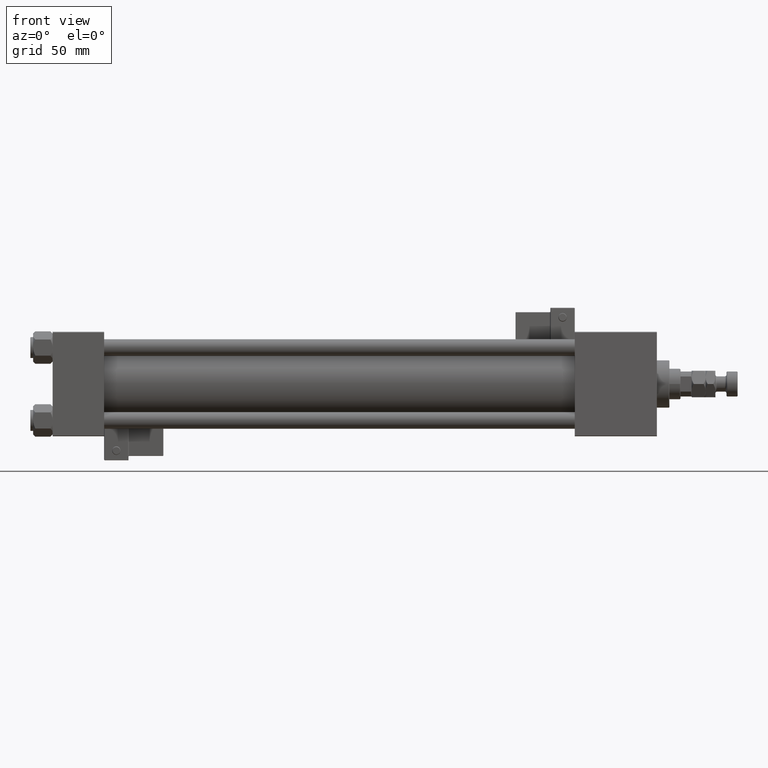
[diagram: clean part render]
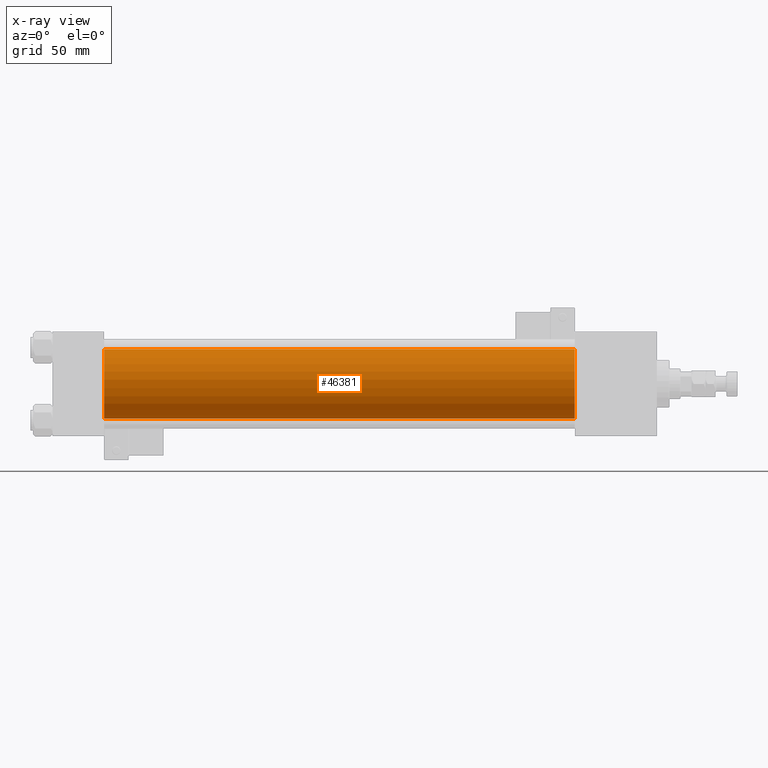
[diagram: x-ray — body ghosted, one internal face saturated and labeled with its STEP entity id]
A machine part, front view, then the same camera in x-ray: the body is ghosted and one INTERNAL B-rep face — a face not visible from any outside direction — is saturated and labeled: STEP entity #46381.
In plain terms, the highlighted cylindrical surface (edge-blend (fillet) strip) has radius 25 mm, axis along (-1, -0, -0).
Its self-contained STEP definition (entity closure, byte-faithful):
#4355 = FACE_OUTER_BOUND ( 'NONE', #5309, .T. ) ;
#5257 = DIRECTION ( 'NONE',  ( -1.000000000000000000, -0.000000000000000000, -0.000000000000000000 ) ) ;
#5275 = VERTEX_POINT ( 'NONE', #18665 ) ;
#5309 = EDGE_LOOP ( 'NONE', ( #45529, #27084, #25676, #10477 ) ) ;
#5798 = VERTEX_POINT ( 'NONE', #47062 ) ;
#7310 = VECTOR ( 'NONE', #5257, 1000.000000000000000 ) ;
#7483 = CARTESIAN_POINT ( 'NONE',  ( 37.00000000000000000, -2.602085213965210642E-15, 0.000000000000000000 ) ) ;
#7950 = AXIS2_PLACEMENT_3D ( 'NONE', #53303, #49191, #45057 ) ;
#8558 = DIRECTION ( 'NONE',  ( 0.000000000000000000, 0.000000000000000000, -1.000000000000000000 ) ) ;
#9756 = CIRCLE ( 'NONE', #14130, 25.00000000000000000 ) ;
#10477 = ORIENTED_EDGE ( 'NONE', *, *, #34844, .F. ) ;
#14130 = AXIS2_PLACEMENT_3D ( 'NONE', #7483, #29399, #8558 ) ;
#15534 = VECTOR ( 'NONE', #19093, 1000.000000000000000 ) ;
#16153 = CARTESIAN_POINT ( 'NONE',  ( 375.0000000000000000, 4.595317839031724996E-16, -25.00000000000000000 ) ) ;
#18665 = CARTESIAN_POINT ( 'NONE',  ( 375.0000000000000000, -2.602085213965210642E-15, 25.00000000000000000 ) ) ;
#18666 = CARTESIAN_POINT ( 'NONE',  ( 375.0000000000000000, 4.595317839031724996E-16, -25.00000000000000000 ) ) ;
#19093 = DIRECTION ( 'NONE',  ( -1.000000000000000000, -0.000000000000000000, -0.000000000000000000 ) ) ;
#24602 = AXIS2_PLACEMENT_3D ( 'NONE', #42449, #34229, #47103 ) ;
#25676 = ORIENTED_EDGE ( 'NONE', *, *, #30504, .F. ) ;
#27084 = ORIENTED_EDGE ( 'NONE', *, *, #51780, .T. ) ;
#28889 = CARTESIAN_POINT ( 'NONE',  ( 37.00000000000000000, -2.602085213965210642E-15, 25.00000000000000000 ) ) ;
#29399 = DIRECTION ( 'NONE',  ( 1.000000000000000000, 0.000000000000000000, 0.000000000000000000 ) ) ;
#29580 = CYLINDRICAL_SURFACE ( 'NONE', #24602, 25.00000000000000000 ) ;
#30504 = EDGE_CURVE ( 'NONE', #36446, #5798, #9756, .T. ) ;
#32244 = LINE ( 'NONE', #48161, #15534 ) ;
#34229 = DIRECTION ( 'NONE',  ( -1.000000000000000000, -0.000000000000000000, -0.000000000000000000 ) ) ;
#34592 = LINE ( 'NONE', #18666, #7310 ) ;
#34844 = EDGE_CURVE ( 'NONE', #5275, #36446, #32244, .T. ) ;
#36446 = VERTEX_POINT ( 'NONE', #28889 ) ;
#39567 = CIRCLE ( 'NONE', #7950, 25.00000000000000000 ) ;
#42449 = CARTESIAN_POINT ( 'NONE',  ( 375.0000000000000000, -2.602085213965210642E-15, 0.000000000000000000 ) ) ;
#44605 = EDGE_CURVE ( 'NONE', #5275, #52930, #39567, .T. ) ;
#45057 = DIRECTION ( 'NONE',  ( 0.000000000000000000, 0.000000000000000000, -1.000000000000000000 ) ) ;
#45529 = ORIENTED_EDGE ( 'NONE', *, *, #44605, .T. ) ;
#46381 = ADVANCED_FACE ( 'NONE', ( #4355 ), #29580, .F. ) ;
#47062 = CARTESIAN_POINT ( 'NONE',  ( 37.00000000000000000, 4.595317839031724996E-16, -25.00000000000000000 ) ) ;
#47103 = DIRECTION ( 'NONE',  ( 0.000000000000000000, 0.000000000000000000, 1.000000000000000000 ) ) ;
#48161 = CARTESIAN_POINT ( 'NONE',  ( 375.0000000000000000, -2.602085213965210642E-15, 25.00000000000000000 ) ) ;
#49191 = DIRECTION ( 'NONE',  ( 1.000000000000000000, 0.000000000000000000, 0.000000000000000000 ) ) ;
#51780 = EDGE_CURVE ( 'NONE', #52930, #5798, #34592, .T. ) ;
#52930 = VERTEX_POINT ( 'NONE', #16153 ) ;
#53303 = CARTESIAN_POINT ( 'NONE',  ( 375.0000000000000000, -2.602085213965210642E-15, 0.000000000000000000 ) ) ;